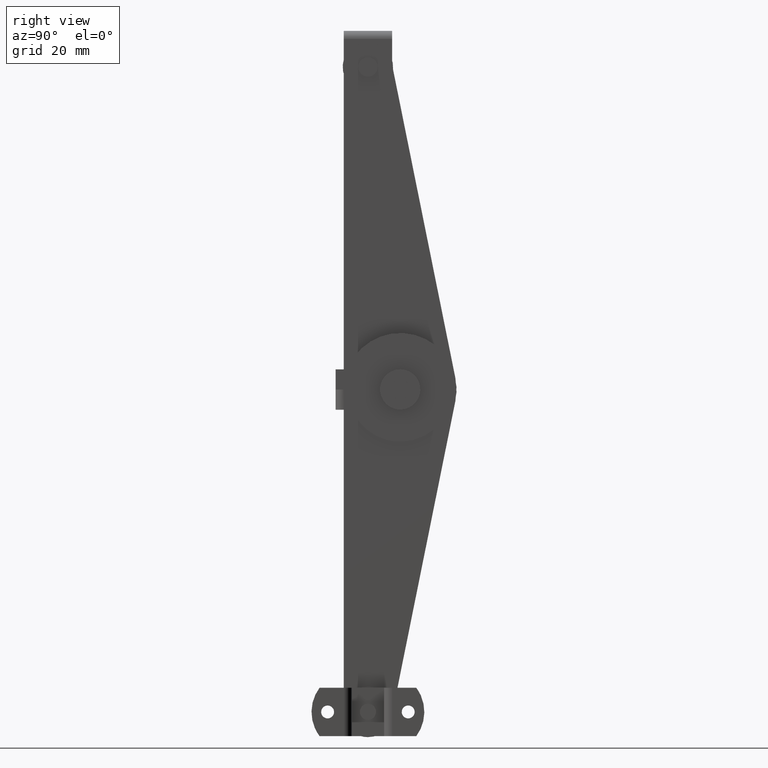
[diagram: clean part render]
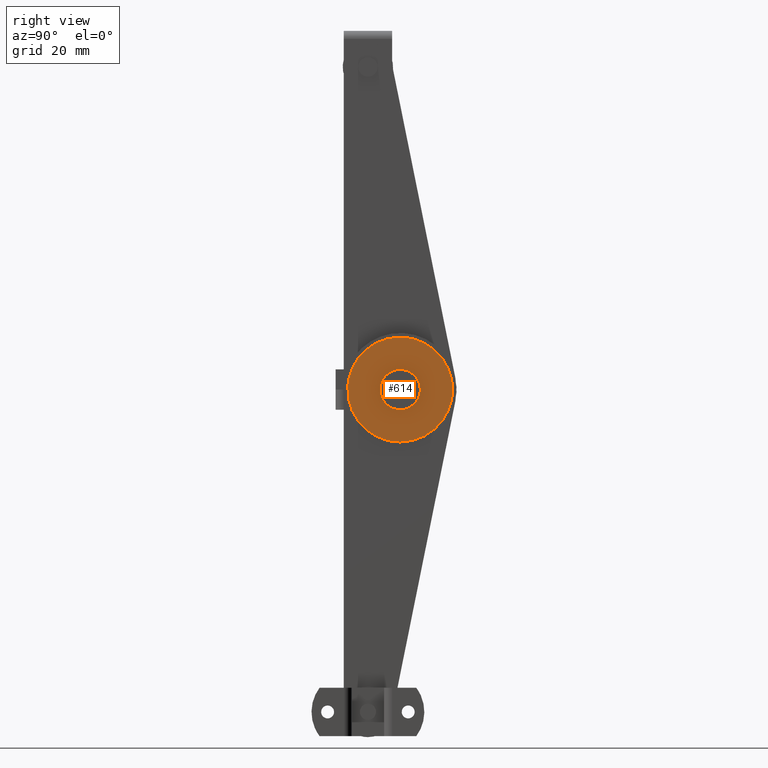
[diagram: same view with one face highlighted and labeled with its STEP entity id]
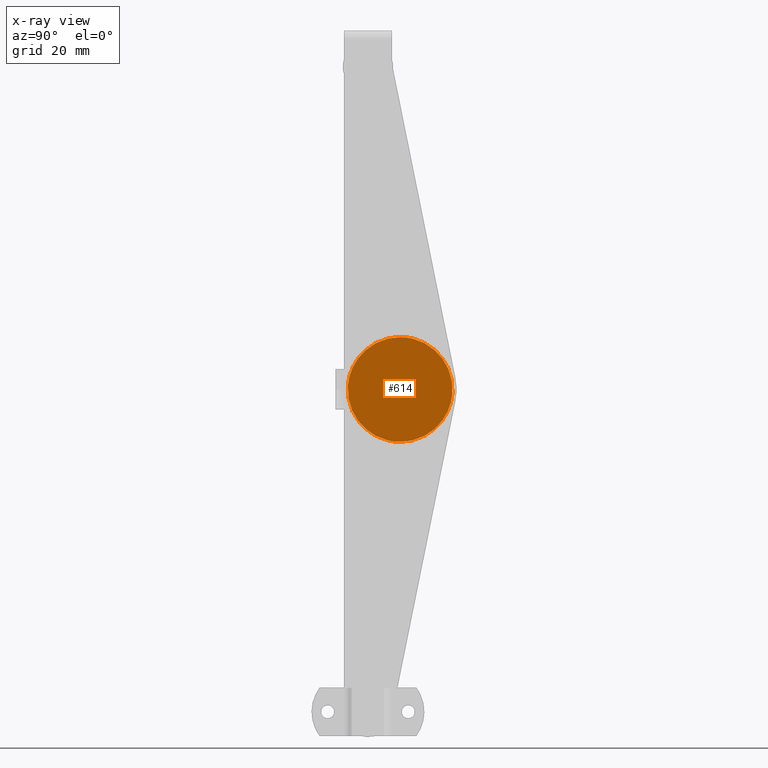
[diagram: x-ray of the same camera — body ghosted, the highlighted face saturated]
A machine part, right view. The second image highlights one B-rep face of the part: STEP entity #614.
The next image is the same camera in x-ray: the body ghosted, the highlighted face saturated — about 0% of this face is hidden behind the body in this view.
In plain terms, the highlighted face is a freeform B-spline surface patch.
Its self-contained STEP definition (entity closure, byte-faithful):
#267=CARTESIAN_POINT('',(-11.500000316634800,9.495376014332281,-0.117688469102415));
#268=VERTEX_POINT('',#267);
#274=CARTESIAN_POINT('',(-11.500000316634800,8.0,1.500000000000000));
#275=VERTEX_POINT('',#274);
#276=CARTESIAN_POINT('',(-11.500000316634804,9.495376014332281,-0.117688469102415));
#277=CARTESIAN_POINT('',(-11.500000316634800,9.500000000000000,-0.058934985212404));
#278=CARTESIAN_POINT('',(-11.500000316634800,9.500000000000000,4.898425E-016));
#279=CARTESIAN_POINT('',(-11.500000316634802,9.500000000000000,1.500000000000001));
#280=CARTESIAN_POINT('',(-11.500000316634800,8.0,1.500000000000000));
#288=(BOUNDED_CURVE()B_SPLINE_CURVE(2,(#276,#277,#278,#279,#280),.UNSPECIFIED.,.F.,.U.)B_SPLINE_CURVE_WITH_KNOTS((3,2,3),(0.736331340638423,0.750000000000000,1.0),.UNSPECIFIED.)CURVE()GEOMETRIC_REPRESENTATION_ITEM()RATIONAL_B_SPLINE_CURVE((0.969723439660583,0.983986169450893,1.0,0.707106781186548,1.0))REPRESENTATION_ITEM(''));
#289=EDGE_CURVE('',#268,#275,#288,.T.);
#291=CARTESIAN_POINT('',(-11.500000316634800,6.504623985667720,0.117688469102416));
#292=VERTEX_POINT('',#291);
#293=CARTESIAN_POINT('',(-11.500000316634800,8.0,1.500000000000000));
#294=CARTESIAN_POINT('',(-11.500000316634800,6.613413937921938,1.500000000000000));
#295=CARTESIAN_POINT('',(-11.500000316634802,6.504623985667720,0.117688469102416));
#303=(BOUNDED_CURVE()B_SPLINE_CURVE(2,(#293,#294,#295),.UNSPECIFIED.,.F.,.U.)B_SPLINE_CURVE_WITH_KNOTS((3,3),(0.0,0.236331340638423),.UNSPECIFIED.)CURVE()GEOMETRIC_REPRESENTATION_ITEM()RATIONAL_B_SPLINE_CURVE((1.0,0.723120611735655,0.969723439660584))REPRESENTATION_ITEM(''));
#304=EDGE_CURVE('',#275,#292,#303,.T.);
#350=CARTESIAN_POINT('',(-11.500000316634800,8.0,-1.500000000000000));
#351=VERTEX_POINT('',#350);
#352=CARTESIAN_POINT('',(-11.500000316634800,6.504623985667720,0.117688469102416));
#353=CARTESIAN_POINT('',(-11.500000316634798,6.500000000000001,0.058934985212405));
#354=CARTESIAN_POINT('',(-11.500000316634800,6.500000000000001,4.898425E-016));
#355=CARTESIAN_POINT('',(-11.500000316634802,6.500000000000003,-1.500000000000000));
#356=CARTESIAN_POINT('',(-11.500000316634800,8.0,-1.500000000000000));
#364=(BOUNDED_CURVE()B_SPLINE_CURVE(2,(#352,#353,#354,#355,#356),.UNSPECIFIED.,.F.,.U.)B_SPLINE_CURVE_WITH_KNOTS((3,2,3),(0.236331340638423,0.250000000000000,0.500000000000000),.UNSPECIFIED.)CURVE()GEOMETRIC_REPRESENTATION_ITEM()RATIONAL_B_SPLINE_CURVE((0.969723439660584,0.983986169450893,1.0,0.707106781186548,1.0))REPRESENTATION_ITEM(''));
#365=EDGE_CURVE('',#292,#351,#364,.T.);
#367=CARTESIAN_POINT('',(-11.500000316634800,8.0,-1.500000000000000));
#368=CARTESIAN_POINT('',(-11.500000316634800,9.386586062078058,-1.499999999999999));
#369=CARTESIAN_POINT('',(-11.500000316634798,9.495376014332281,-0.117688469102415));
#377=(BOUNDED_CURVE()B_SPLINE_CURVE(2,(#367,#368,#369),.UNSPECIFIED.,.F.,.U.)B_SPLINE_CURVE_WITH_KNOTS((3,3),(0.500000000000000,0.736331340638423),.UNSPECIFIED.)CURVE()GEOMETRIC_REPRESENTATION_ITEM()RATIONAL_B_SPLINE_CURVE((1.0,0.723120611735656,0.969723439660582))REPRESENTATION_ITEM(''));
#378=EDGE_CURVE('',#351,#268,#377,.T.);
#432=CARTESIAN_POINT('',(-11.500000316634800,-4.959925338525174,1.019968244531696));
#433=VERTEX_POINT('',#432);
#439=CARTESIAN_POINT('',(-11.500000316634800,8.0,13.0));
#440=VERTEX_POINT('',#439);
#441=CARTESIAN_POINT('',(-11.500000316634800,8.0,13.0));
#442=CARTESIAN_POINT('',(-11.500000316634800,-4.017076391427012,13.0));
#443=CARTESIAN_POINT('',(-11.500000316634802,-4.959925338525174,1.019968244531696));
#451=(BOUNDED_CURVE()B_SPLINE_CURVE(2,(#441,#442,#443),.UNSPECIFIED.,.F.,.U.)B_SPLINE_CURVE_WITH_KNOTS((3,3),(0.0,0.236331300630923),.UNSPECIFIED.)CURVE()GEOMETRIC_REPRESENTATION_ITEM()RATIONAL_B_SPLINE_CURVE((1.0,0.723120658607357,0.969723356167967))REPRESENTATION_ITEM(''));
#452=EDGE_CURVE('',#440,#433,#451,.T.);
#454=CARTESIAN_POINT('',(-11.500000316634800,20.959925338525171,-1.019968244531697));
#455=VERTEX_POINT('',#454);
#456=CARTESIAN_POINT('',(-11.500000316634798,20.959925338525171,-1.019968244531697));
#457=CARTESIAN_POINT('',(-11.500000316634804,20.999999999999993,-0.510771391169737));
#458=CARTESIAN_POINT('',(-11.500000316634800,21.0,4.898425E-016));
#459=CARTESIAN_POINT('',(-11.500000316634800,20.999999999999989,13.0));
#460=CARTESIAN_POINT('',(-11.500000316634800,8.0,13.0));
#468=(BOUNDED_CURVE()B_SPLINE_CURVE(2,(#456,#457,#458,#459,#460),.UNSPECIFIED.,.F.,.U.)B_SPLINE_CURVE_WITH_KNOTS((3,2,3),(0.736331300630923,0.750000000000000,1.0),.UNSPECIFIED.)CURVE()GEOMETRIC_REPRESENTATION_ITEM()RATIONAL_B_SPLINE_CURVE((0.969723356167967,0.983986122579190,1.0,0.707106781186547,1.0))REPRESENTATION_ITEM(''));
#469=EDGE_CURVE('',#455,#440,#468,.T.);
#545=CARTESIAN_POINT('',(-11.500000316634800,8.0,-13.0));
#546=VERTEX_POINT('',#545);
#547=CARTESIAN_POINT('',(-11.500000316634800,8.0,-13.0));
#548=CARTESIAN_POINT('',(-11.500000316634797,20.017076391427032,-13.0));
#549=CARTESIAN_POINT('',(-11.500000316634802,20.959925338525178,-1.019968244531697));
#557=(BOUNDED_CURVE()B_SPLINE_CURVE(2,(#547,#548,#549),.UNSPECIFIED.,.F.,.U.)B_SPLINE_CURVE_WITH_KNOTS((3,3),(0.500000000000000,0.736331300630923),.UNSPECIFIED.)CURVE()GEOMETRIC_REPRESENTATION_ITEM()RATIONAL_B_SPLINE_CURVE((1.0,0.723120658607357,0.969723356167968))REPRESENTATION_ITEM(''));
#558=EDGE_CURVE('',#546,#455,#557,.T.);
#560=CARTESIAN_POINT('',(-11.500000316634798,-4.959925338525174,1.019968244531696));
#561=CARTESIAN_POINT('',(-11.500000316634804,-4.999999999999999,0.510771391169737));
#562=CARTESIAN_POINT('',(-11.500000316634800,-4.999999999999999,4.898425E-016));
#563=CARTESIAN_POINT('',(-11.500000316634800,-4.999999999999999,-13.0));
#564=CARTESIAN_POINT('',(-11.500000316634800,8.0,-13.0));
#572=(BOUNDED_CURVE()B_SPLINE_CURVE(2,(#560,#561,#562,#563,#564),.UNSPECIFIED.,.F.,.U.)B_SPLINE_CURVE_WITH_KNOTS((3,2,3),(0.236331300630923,0.250000000000000,0.500000000000000),.UNSPECIFIED.)CURVE()GEOMETRIC_REPRESENTATION_ITEM()RATIONAL_B_SPLINE_CURVE((0.969723356167967,0.983986122579190,1.0,0.707106781186547,1.0))REPRESENTATION_ITEM(''));
#573=EDGE_CURVE('',#433,#546,#572,.T.);
#597=CARTESIAN_POINT('',(-11.500000316634800,-6.294731785448676,14.298699949606950));
#598=CARTESIAN_POINT('',(-11.500000316634800,22.294732482823019,14.298699949606950));
#599=CARTESIAN_POINT('',(-11.500000316634800,-6.294731785448676,-14.298700646981301));
#600=CARTESIAN_POINT('',(-11.500000316634800,22.294732482823019,-14.298700646981301));
#601=B_SPLINE_SURFACE_WITH_KNOTS('',1,1,((#597,#599),(#598,#600)),.UNSPECIFIED.,.F.,.F.,.U.,(2,2),(2,2),(0.0,28.589464268271691),(0.0,28.597400596588251),.UNSPECIFIED.);
#602=ORIENTED_EDGE('',*,*,#452,.T.);
#603=ORIENTED_EDGE('',*,*,#573,.T.);
#604=ORIENTED_EDGE('',*,*,#558,.T.);
#605=ORIENTED_EDGE('',*,*,#469,.T.);
#606=EDGE_LOOP('',(#602,#603,#604,#605));
#607=FACE_OUTER_BOUND('',#606,.T.);
#608=ORIENTED_EDGE('',*,*,#378,.F.);
#609=ORIENTED_EDGE('',*,*,#365,.F.);
#610=ORIENTED_EDGE('',*,*,#304,.F.);
#611=ORIENTED_EDGE('',*,*,#289,.F.);
#612=EDGE_LOOP('',(#608,#609,#610,#611));
#613=FACE_BOUND('',#612,.T.);
#614=ADVANCED_FACE('',(#607,#613),#601,.F.);